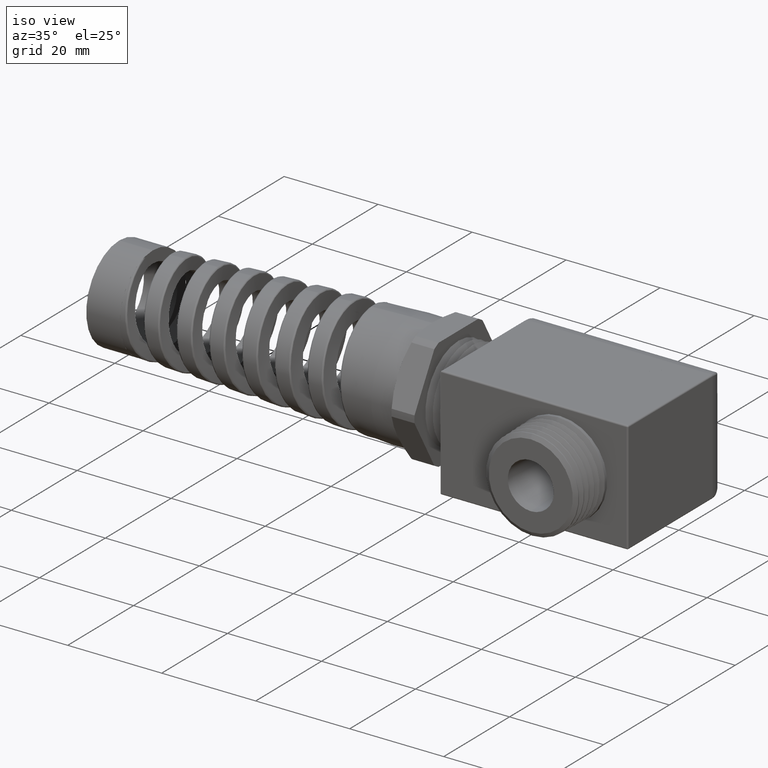
[diagram: clean part render]
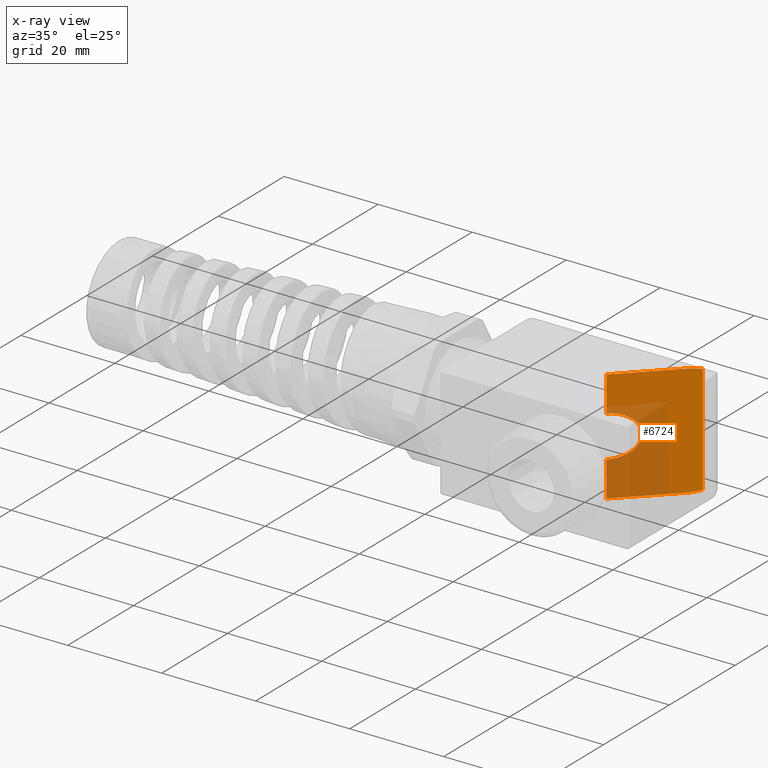
[diagram: x-ray — body ghosted, one internal face saturated and labeled with its STEP entity id]
A machine part, iso view, then the same camera in x-ray: the body is ghosted and one INTERNAL B-rep face — a face not visible from any outside direction — is saturated and labeled: STEP entity #6724.
In plain terms, the highlighted planar face has unit normal (-0.7071, 0.7071, 0).
Its self-contained STEP definition (entity closure, byte-faithful):
#380 = CARTESIAN_POINT ( 'NONE',  ( 0.9679999999999948600, 0.0000000000000000000, -0.1750000000000000700 ) ) ;
#461 = DIRECTION ( 'NONE',  ( -0.7071067811865512400, -0.7071067811865436900, 0.0000000000000000000 ) ) ;
#462 = DIRECTION ( 'NONE',  ( -0.7071067811865438000, 0.7071067811865513500, 0.0000000000000000000 ) ) ;
#463 = CARTESIAN_POINT ( 'NONE',  ( 1.443555555555555500, 0.4755555555555555100, -0.4703937007874016700 ) ) ;
#464 = AXIS2_PLACEMENT_3D ( 'NONE', #463, #462, #461 ) ;
#465 = PLANE ( 'NONE',  #464 ) ;
#466 = FACE_OUTER_BOUND ( 'NONE', #5725, .T. ) ;
#670 = CARTESIAN_POINT ( 'NONE',  ( 0.9679999999999949800, 1.222686989034450500E-017, 0.1749999999999999900 ) ) ;
#914 = CARTESIAN_POINT ( 'NONE',  ( 0.9679999999999949800, -6.137788176939989100E-018, 0.4699999999999998600 ) ) ;
#915 = CARTESIAN_POINT ( 'NONE',  ( 1.443555555555555500, 0.4755555555555555100, -0.4593243544286518300 ) ) ;
#916 = CARTESIAN_POINT ( 'NONE',  ( 1.381333333333332600, 0.4133333333333332700, 0.4699999999999998600 ) ) ;
#917 = CARTESIAN_POINT ( 'NONE',  ( 1.402581134423580300, 0.4345811344235809300, 0.4699999999999999200 ) ) ;
#918 = CARTESIAN_POINT ( 'NONE',  ( 1.423522936573932600, 0.4555229365739327800, 0.4664069547920676200 ) ) ;
#919 = CARTESIAN_POINT ( 'NONE',  ( 1.443555555555555500, 0.4755555555555555100, 0.4593243544286514900 ) ) ;
#920 =( BOUNDED_CURVE ( )  B_SPLINE_CURVE ( 3, ( #919, #918, #917, #916 ),
 .UNSPECIFIED., .F., .T. ) 
 B_SPLINE_CURVE_WITH_KNOTS ( ( 4, 4 ),
 ( 1.230959417340775000, 1.570796326794896800 ),
 .UNSPECIFIED. ) 
 CURVE ( )  GEOMETRIC_REPRESENTATION_ITEM ( )  RATIONAL_B_SPLINE_CURVE ( ( 1.000000000000000000, 0.9903990397689925700, 0.9903990397689925700, 1.000000000000000000 ) ) 
 REPRESENTATION_ITEM ( '' )  );
#921 = CARTESIAN_POINT ( 'NONE',  ( 1.443555555555555500, 0.4755555555555555100, 0.4593243544286514900 ) ) ;
#944 = CARTESIAN_POINT ( 'NONE',  ( 1.381333333333332600, 0.4133333333333332700, 0.4699999999999998600 ) ) ;
#945 = DIRECTION ( 'NONE',  ( 0.7071067811865512400, 0.7071067811865436900, 0.0000000000000000000 ) ) ;
#946 = VECTOR ( 'NONE', #945, 39.37007874015748900 ) ;
#947 = CARTESIAN_POINT ( 'NONE',  ( 1.218836982058541000, 0.2508369820585435500, 0.4699999999999998600 ) ) ;
#948 = LINE ( 'NONE', #947, #946 ) ;
#949 = DIRECTION ( 'NONE',  ( 0.0000000000000000000, 0.0000000000000000000, 1.000000000000000000 ) ) ;
#950 = VECTOR ( 'NONE', #949, 39.37007874015748100 ) ;
#951 = CARTESIAN_POINT ( 'NONE',  ( 0.9679999999999948600, 0.0000000000000000000, -0.4703937007874016700 ) ) ;
#952 = LINE ( 'NONE', #951, #950 ) ;
#954 = CARTESIAN_POINT ( 'NONE',  ( 0.9679999999999949800, 1.222686989034450500E-017, 0.1749999999999999900 ) ) ;
#955 = CARTESIAN_POINT ( 'NONE',  ( 1.317999999999998700, 0.3499999999999999800, 0.1749999999999999300 ) ) ;
#956 = CARTESIAN_POINT ( 'NONE',  ( 1.317999999999998700, 0.3499999999999999800, -0.1749999999999999300 ) ) ;
#957 = CARTESIAN_POINT ( 'NONE',  ( 0.9679999999999948600, 0.0000000000000000000, -0.1750000000000000700 ) ) ;
#958 =( BOUNDED_CURVE ( )  B_SPLINE_CURVE ( 3, ( #957, #956, #955, #954 ),
 .UNSPECIFIED., .F., .T. ) 
 B_SPLINE_CURVE_WITH_KNOTS ( ( 4, 4 ),
 ( 1.570796326794896800, 4.712388980384689700 ),
 .UNSPECIFIED. ) 
 CURVE ( )  GEOMETRIC_REPRESENTATION_ITEM ( )  RATIONAL_B_SPLINE_CURVE ( ( 1.000000000000000000, 0.3333333333333333100, 0.3333333333333333100, 1.000000000000000000 ) ) 
 REPRESENTATION_ITEM ( '' )  );
#966 = DIRECTION ( 'NONE',  ( -0.7071067811865512400, -0.7071067811865436900, 0.0000000000000000000 ) ) ;
#967 = VECTOR ( 'NONE', #966, 39.37007874015748900 ) ;
#978 = CARTESIAN_POINT ( 'NONE',  ( 0.9817780020556732300, 0.01377800205567823400, -0.4700000000000000300 ) ) ;
#980 = LINE ( 'NONE', #978, #967 ) ;
#1056 =( BOUNDED_CURVE ( )  B_SPLINE_CURVE ( 3, ( #1114, #1113, #1112, #1111 ),
 .UNSPECIFIED., .F., .T. ) 
 B_SPLINE_CURVE_WITH_KNOTS ( ( 4, 4 ),
 ( 4.712388980384689700, 5.052225889838811500 ),
 .UNSPECIFIED. ) 
 CURVE ( )  GEOMETRIC_REPRESENTATION_ITEM ( )  RATIONAL_B_SPLINE_CURVE ( ( 1.000000000000000000, 0.9903990397689925700, 0.9903990397689925700, 1.000000000000000000 ) ) 
 REPRESENTATION_ITEM ( '' )  );
#1059 = CARTESIAN_POINT ( 'NONE',  ( 1.381333333333332600, 0.4133333333333332200, -0.4700000000000000300 ) ) ;
#1060 = DIRECTION ( 'NONE',  ( 0.0000000000000000000, 0.0000000000000000000, 1.000000000000000000 ) ) ;
#1061 = VECTOR ( 'NONE', #1060, 39.37007874015748100 ) ;
#1062 = CARTESIAN_POINT ( 'NONE',  ( 1.443555555555555500, 0.4755555555555555100, -0.4703937007874016700 ) ) ;
#1063 = LINE ( 'NONE', #1062, #1061 ) ;
#1064 = DIRECTION ( 'NONE',  ( 0.0000000000000000000, 0.0000000000000000000, 1.000000000000000000 ) ) ;
#1065 = VECTOR ( 'NONE', #1064, 39.37007874015748100 ) ;
#1066 = CARTESIAN_POINT ( 'NONE',  ( 0.9679999999999948600, 0.0000000000000000000, -0.4703937007874016700 ) ) ;
#1067 = LINE ( 'NONE', #1066, #1065 ) ;
#1068 = CARTESIAN_POINT ( 'NONE',  ( 0.9679999999999949800, -6.137788176939989100E-018, -0.4700000000000000300 ) ) ;
#1111 = CARTESIAN_POINT ( 'NONE',  ( 1.443555555555555500, 0.4755555555555555100, -0.4593243544286518300 ) ) ;
#1112 = CARTESIAN_POINT ( 'NONE',  ( 1.423522936573932600, 0.4555229365739327200, -0.4664069547920677800 ) ) ;
#1113 = CARTESIAN_POINT ( 'NONE',  ( 1.402581134423580300, 0.4345811344235808200, -0.4700000000000000300 ) ) ;
#1114 = CARTESIAN_POINT ( 'NONE',  ( 1.381333333333332600, 0.4133333333333332200, -0.4700000000000000300 ) ) ;
#5725 = EDGE_LOOP ( 'NONE', ( #7010, #7013, #6945, #6947, #7019, #6941, #7015, #6970 ) ) ;
#6672 = VERTEX_POINT ( 'NONE', #380 ) ;
#6724 = ADVANCED_FACE ( 'NONE', ( #466 ), #465, .T. ) ;
#6788 = VERTEX_POINT ( 'NONE', #670 ) ;
#6939 = EDGE_CURVE ( 'NONE', #6940, #6949, #920, .T. ) ;
#6940 = VERTEX_POINT ( 'NONE', #921 ) ;
#6941 = ORIENTED_EDGE ( 'NONE', *, *, #7014, .F. ) ;
#6942 = VERTEX_POINT ( 'NONE', #915 ) ;
#6943 = EDGE_CURVE ( 'NONE', #6672, #6788, #958, .T. ) ;
#6944 = VERTEX_POINT ( 'NONE', #914 ) ;
#6945 = ORIENTED_EDGE ( 'NONE', *, *, #6946, .T. ) ;
#6946 = EDGE_CURVE ( 'NONE', #6788, #6944, #952, .T. ) ;
#6947 = ORIENTED_EDGE ( 'NONE', *, *, #6948, .T. ) ;
#6948 = EDGE_CURVE ( 'NONE', #6944, #6949, #948, .T. ) ;
#6949 = VERTEX_POINT ( 'NONE', #944 ) ;
#6970 = ORIENTED_EDGE ( 'NONE', *, *, #6971, .T. ) ;
#6971 = EDGE_CURVE ( 'NONE', #7017, #7011, #980, .T. ) ;
#7010 = ORIENTED_EDGE ( 'NONE', *, *, #7012, .T. ) ;
#7011 = VERTEX_POINT ( 'NONE', #1068 ) ;
#7012 = EDGE_CURVE ( 'NONE', #7011, #6672, #1067, .T. ) ;
#7013 = ORIENTED_EDGE ( 'NONE', *, *, #6943, .T. ) ;
#7014 = EDGE_CURVE ( 'NONE', #6942, #6940, #1063, .T. ) ;
#7015 = ORIENTED_EDGE ( 'NONE', *, *, #7016, .F. ) ;
#7016 = EDGE_CURVE ( 'NONE', #7017, #6942, #1056, .T. ) ;
#7017 = VERTEX_POINT ( 'NONE', #1059 ) ;
#7019 = ORIENTED_EDGE ( 'NONE', *, *, #6939, .F. ) ;